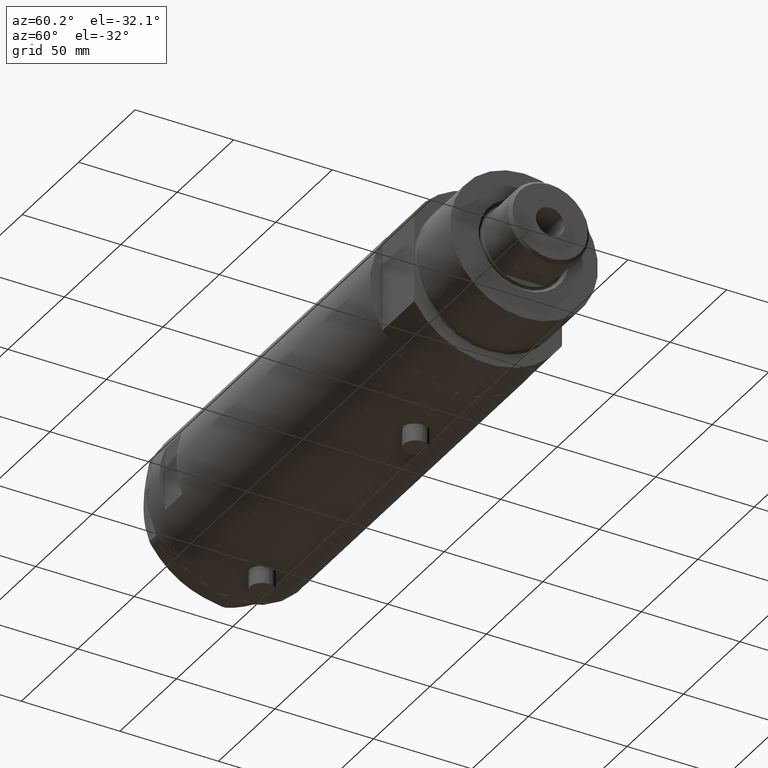
[diagram: clean part render]
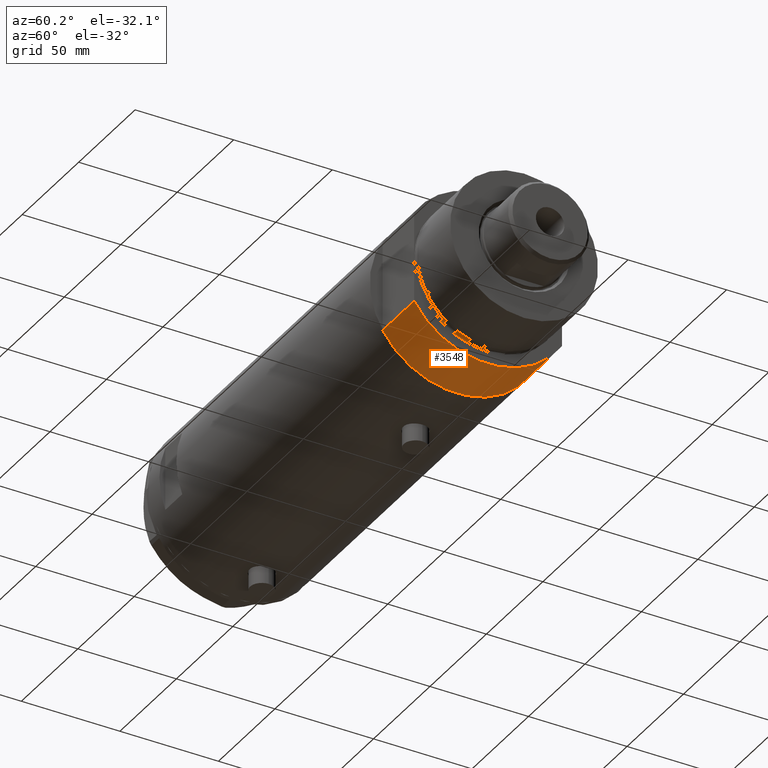
[diagram: same view with one face highlighted and labeled with its STEP entity id]
A machine part, auxiliary view. The second image highlights one B-rep face of the part: STEP entity #3548.
In plain terms, the highlighted cylindrical surface (partial cylindrical patch) has radius 44 mm, axis along (-1, -0, 0).
Its self-contained STEP definition (entity closure, byte-faithful):
#49 = DIRECTION ( 'NONE',  ( -0.000000000000000000, -0.000000000000000000, 1.000000000000000000 ) ) ;
#223 = ORIENTED_EDGE ( 'NONE', *, *, #4536, .T. ) ;
#310 = AXIS2_PLACEMENT_3D ( 'NONE', #1628, #3029, #4427 ) ;
#369 = LINE ( 'NONE', #3850, #1052 ) ;
#503 = LINE ( 'NONE', #2320, #3986 ) ;
#578 = DIRECTION ( 'NONE',  ( -0.000000000000000000, -0.000000000000000000, 1.000000000000000000 ) ) ;
#862 = CARTESIAN_POINT ( 'NONE',  ( 23.01629857296780557, -37.50000000000000000, 0.000000000000000000 ) ) ;
#1052 = VECTOR ( 'NONE', #49, 1000.000000000000000 ) ;
#1236 = DIRECTION ( 'NONE',  ( -0.000000000000000000, -0.000000000000000000, -1.000000000000000000 ) ) ;
#1341 = CIRCLE ( 'NONE', #310, 44.00000000000000000 ) ;
#1525 = VERTEX_POINT ( 'NONE', #2234 ) ;
#1560 = FACE_OUTER_BOUND ( 'NONE', #3398, .T. ) ;
#1628 = CARTESIAN_POINT ( 'NONE',  ( 0.000000000000000000, 0.000000000000000000, 0.000000000000000000 ) ) ;
#1882 = AXIS2_PLACEMENT_3D ( 'NONE', #3495, #3508, #3825 ) ;
#1910 = CARTESIAN_POINT ( 'NONE',  ( 0.000000000000000000, 0.000000000000000000, 27.89999999999999858 ) ) ;
#1943 = ORIENTED_EDGE ( 'NONE', *, *, #4141, .F. ) ;
#2234 = CARTESIAN_POINT ( 'NONE',  ( 23.01629857296780557, 37.50000000000000000, 0.000000000000000000 ) ) ;
#2308 = VERTEX_POINT ( 'NONE', #862 ) ;
#2320 = CARTESIAN_POINT ( 'NONE',  ( 23.01629857296780557, 37.50000000000000000, 0.000000000000000000 ) ) ;
#2392 = EDGE_CURVE ( 'NONE', #2308, #1525, #1341, .T. ) ;
#2436 = AXIS2_PLACEMENT_3D ( 'NONE', #1910, #1236, #3657 ) ;
#2825 = CARTESIAN_POINT ( 'NONE',  ( 23.01629857296780557, 37.50000000000000000, 27.89999999999999858 ) ) ;
#3026 = EDGE_CURVE ( 'NONE', #2308, #3521, #369, .T. ) ;
#3029 = DIRECTION ( 'NONE',  ( 0.000000000000000000, 0.000000000000000000, 1.000000000000000000 ) ) ;
#3161 = ORIENTED_EDGE ( 'NONE', *, *, #3026, .F. ) ;
#3258 = CYLINDRICAL_SURFACE ( 'NONE', #2436, 44.00000000000000000 ) ;
#3285 = CARTESIAN_POINT ( 'NONE',  ( 23.01629857296780557, -37.50000000000000000, 27.89999999999999858 ) ) ;
#3398 = EDGE_LOOP ( 'NONE', ( #1943, #3161, #3686, #223 ) ) ;
#3495 = CARTESIAN_POINT ( 'NONE',  ( 0.000000000000000000, 0.000000000000000000, 27.89999999999999858 ) ) ;
#3508 = DIRECTION ( 'NONE',  ( 0.000000000000000000, 0.000000000000000000, 1.000000000000000000 ) ) ;
#3521 = VERTEX_POINT ( 'NONE', #3285 ) ;
#3548 = ADVANCED_FACE ( 'NONE', ( #1560 ), #3258, .T. ) ;
#3657 = DIRECTION ( 'NONE',  ( -1.000000000000000000, 0.000000000000000000, 0.000000000000000000 ) ) ;
#3686 = ORIENTED_EDGE ( 'NONE', *, *, #2392, .T. ) ;
#3825 = DIRECTION ( 'NONE',  ( 1.000000000000000000, 0.000000000000000000, 0.000000000000000000 ) ) ;
#3850 = CARTESIAN_POINT ( 'NONE',  ( 23.01629857296780557, -37.50000000000000000, 0.000000000000000000 ) ) ;
#3984 = CIRCLE ( 'NONE', #1882, 44.00000000000000000 ) ;
#3986 = VECTOR ( 'NONE', #578, 1000.000000000000000 ) ;
#4141 = EDGE_CURVE ( 'NONE', #3521, #4198, #3984, .T. ) ;
#4198 = VERTEX_POINT ( 'NONE', #2825 ) ;
#4427 = DIRECTION ( 'NONE',  ( 1.000000000000000000, 0.000000000000000000, 0.000000000000000000 ) ) ;
#4536 = EDGE_CURVE ( 'NONE', #1525, #4198, #503, .T. ) ;